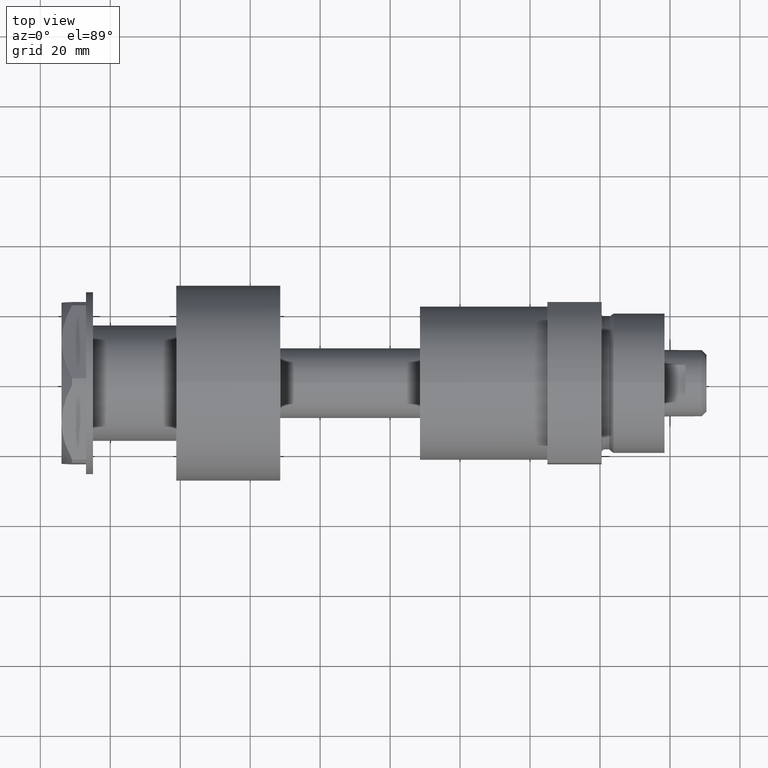
[diagram: clean part render]
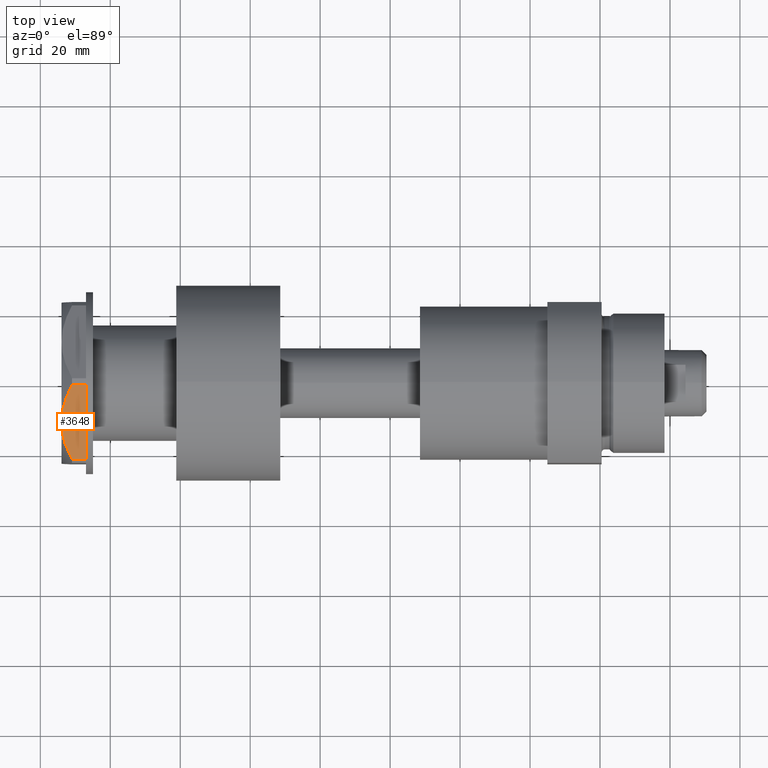
[diagram: same view with one face highlighted and labeled with its STEP entity id]
A machine part, top view. The second image highlights one B-rep face of the part: STEP entity #3648.
In plain terms, the highlighted planar face has unit normal (-0, 0.5, -0.866).
Its self-contained STEP definition (entity closure, byte-faithful):
#89 = VECTOR ( 'NONE', #4897, 1000.000000000000000 ) ;
#200 = CARTESIAN_POINT ( 'NONE',  ( -0.9699484522383838847, -25.99811238272275205, 7.000000000000000000 ) ) ;
#287 = FACE_OUTER_BOUND ( 'NONE', #3434, .T. ) ;
#375 = CARTESIAN_POINT ( 'NONE',  ( -1.799196345396636421, -25.51934588838291162, 4.431317509509394625 ) ) ;
#389 = ORIENTED_EDGE ( 'NONE', *, *, #4813, .F. ) ;
#433 = EDGE_CURVE ( 'NONE', #3117, #601, #1774, .T. ) ;
#442 = LINE ( 'NONE', #1534, #4921 ) ;
#481 = CARTESIAN_POINT ( 'NONE',  ( -0.9699484522383793328, -25.99811238272275560, 3.983800287807630180 ) ) ;
#489 = CARTESIAN_POINT ( 'NONE',  ( -0.9699484522383804430, -25.99811238272275560, 0.000000000000000000 ) ) ;
#558 = CARTESIAN_POINT ( 'NONE',  ( -15.16323225988328893, -17.80361615569431777, 6.637313967156948991 ) ) ;
#584 = CARTESIAN_POINT ( 'NONE',  ( -22.99999999999990408, -13.27905619136147841, 0.000000000000000000 ) ) ;
#589 = ORIENTED_EDGE ( 'NONE', *, *, #4911, .F. ) ;
#600 = LINE ( 'NONE', #200, #89 ) ;
#601 = VERTEX_POINT ( 'NONE', #3497 ) ;
#674 = CARTESIAN_POINT ( 'NONE',  ( -4.357207709415879648, -24.04247733877629400, 5.570552255229724636 ) ) ;
#790 = EDGE_CURVE ( 'NONE', #601, #1816, #2161, .T. ) ;
#856 = CARTESIAN_POINT ( 'NONE',  ( -18.67981377008999644, -15.77331687414923778, 5.629374868826106493 ) ) ;
#1175 = CARTESIAN_POINT ( 'NONE',  ( -22.03005154776132102, -13.83905619136147536, 7.000000000000000000 ) ) ;
#1224 = VECTOR ( 'NONE', #2135, 1000.000000000000000 ) ;
#1240 = CARTESIAN_POINT ( 'NONE',  ( -22.03005154776146313, -13.83905619136139364, 3.983800287807550244 ) ) ;
#1251 = DIRECTION ( 'NONE',  ( 0.8660254037844415942, -0.4999999999999950595, 0.000000000000000000 ) ) ;
#1416 = CARTESIAN_POINT ( 'NONE',  ( -11.49999999999990585, -19.91858428704219364, 7.000000000000000000 ) ) ;
#1452 = EDGE_CURVE ( 'NONE', #2441, #3117, #1964, .T. ) ;
#1470 = CARTESIAN_POINT ( 'NONE',  ( -5.229981517797917867, -23.53858114556528491, 5.892128867758447797 ) ) ;
#1534 = CARTESIAN_POINT ( 'NONE',  ( -22.99999999999990408, -13.27905619136147841, 0.000000000000000000 ) ) ;
#1561 = B_SPLINE_CURVE_WITH_KNOTS ( 'NONE', 3,
 ( #4963, #3856, #1921, #3884, #1470, #674, #2221, #4580, #375, #1941 ),
 .UNSPECIFIED., .F., .F.,
 ( 4, 2, 2, 2, 4 ),
 ( 0.01376519981810312397, 0.01998941321701588891, 0.02154546656674408145, 0.02310151991647227399, 0.02621362661592865212 ),
 .UNSPECIFIED. ) ;
#1644 = CARTESIAN_POINT ( 'NONE',  ( -16.05322244309625290, -17.28978008384019915, 6.426899937603785418 ) ) ;
#1712 = VERTEX_POINT ( 'NONE', #1416 ) ;
#1774 = LINE ( 'NONE', #4505, #4311 ) ;
#1816 = VERTEX_POINT ( 'NONE', #3009 ) ;
#1921 = CARTESIAN_POINT ( 'NONE',  ( -7.884645426989515649, -22.00591022298554833, 6.707651728477005193 ) ) ;
#1941 = CARTESIAN_POINT ( 'NONE',  ( -0.9699484522383793328, -25.99811238272275560, 3.983800287807630180 ) ) ;
#1964 = LINE ( 'NONE', #1175, #3577 ) ;
#2135 = DIRECTION ( 'NONE',  ( 0.8660254037844415942, -0.4999999999999950595, 0.000000000000000000 ) ) ;
#2161 = LINE ( 'NONE', #584, #1224 ) ;
#2163 = CARTESIAN_POINT ( 'NONE',  ( -13.80210138309694656, -18.58946543380921668, 6.852712638955803293 ) ) ;
#2209 = CARTESIAN_POINT ( 'NONE',  ( -22.99999999999990408, -13.27905619136147841, 7.000000000000000000 ) ) ;
#2221 = CARTESIAN_POINT ( 'NONE',  ( -3.925137811029886681, -24.29193301091817858, 5.397272853991413655 ) ) ;
#2406 = ORIENTED_EDGE ( 'NONE', *, *, #3722, .T. ) ;
#2441 = VERTEX_POINT ( 'NONE', #3945 ) ;
#2470 = CARTESIAN_POINT ( 'NONE',  ( -13.34348161667001875, -18.85424967941148466, 6.907842277728440727 ) ) ;
#2551 = AXIS2_PLACEMENT_3D ( 'NONE', #2209, #3031, #3824 ) ;
#2580 = B_SPLINE_CURVE_WITH_KNOTS ( 'NONE', 3,
 ( #1240, #4347, #856, #1644, #558, #2163, #2470, #2955, #4524, #3294 ),
 .UNSPECIFIED., .F., .F.,
 ( 4, 2, 2, 2, 4 ),
 ( 0.001228959670438515206, 0.007497079744270819697, 0.01063113978118697227, 0.01219816979964504812, 0.01376519981810312397 ),
 .UNSPECIFIED. ) ;
#2859 = CARTESIAN_POINT ( 'NONE',  ( -22.03005154776132102, -13.83905619136147536, 0.000000000000000000 ) ) ;
#2923 = VERTEX_POINT ( 'NONE', #481 ) ;
#2955 = CARTESIAN_POINT ( 'NONE',  ( -12.41906678023023325, -19.38796083407287085, 6.981686407609505096 ) ) ;
#2980 = PLANE ( 'NONE',  #2551 ) ;
#3009 = CARTESIAN_POINT ( 'NONE',  ( -0.9999999999997406519, -25.98076211353317433, 0.000000000000000000 ) ) ;
#3031 = DIRECTION ( 'NONE',  ( 0.4999999999999950595, 0.8660254037844415942, -0.000000000000000000 ) ) ;
#3117 = VERTEX_POINT ( 'NONE', #2859 ) ;
#3274 = ORIENTED_EDGE ( 'NONE', *, *, #433, .T. ) ;
#3294 = CARTESIAN_POINT ( 'NONE',  ( -11.49999999999990585, -19.91858428704219364, 7.000000000000000000 ) ) ;
#3374 = DIRECTION ( 'NONE',  ( 0.8660254037844415942, -0.4999999999999950595, 0.000000000000000000 ) ) ;
#3434 = EDGE_LOOP ( 'NONE', ( #589, #4467, #3274, #3831, #2406, #4506, #389 ) ) ;
#3497 = CARTESIAN_POINT ( 'NONE',  ( -21.99999999999998224, -13.85640646055105485, 0.000000000000000000 ) ) ;
#3572 = DIRECTION ( 'NONE',  ( -0.000000000000000000, 0.000000000000000000, -1.000000000000000000 ) ) ;
#3577 = VECTOR ( 'NONE', #3572, 1000.000000000000000 ) ;
#3648 = ADVANCED_FACE ( 'NONE', ( #287 ), #2980, .F. ) ;
#3722 = EDGE_CURVE ( 'NONE', #1816, #4379, #442, .T. ) ;
#3824 = DIRECTION ( 'NONE',  ( -0.8660254037844415942, 0.4999999999999950595, 0.000000000000000000 ) ) ;
#3831 = ORIENTED_EDGE ( 'NONE', *, *, #790, .T. ) ;
#3856 = CARTESIAN_POINT ( 'NONE',  ( -9.678244919010008829, -20.97037507344916207, 7.000000000000096811 ) ) ;
#3884 = CARTESIAN_POINT ( 'NONE',  ( -5.671686373602661035, -23.28356272816404982, 6.040681765829337913 ) ) ;
#3945 = CARTESIAN_POINT ( 'NONE',  ( -22.03005154776146313, -13.83905619136139364, 3.983800287807550244 ) ) ;
#4001 = EDGE_CURVE ( 'NONE', #4379, #2923, #600, .T. ) ;
#4311 = VECTOR ( 'NONE', #3374, 1000.000000000000000 ) ;
#4347 = CARTESIAN_POINT ( 'NONE',  ( -20.37350567916426058, -14.79546339452094017, 4.877782426143459027 ) ) ;
#4379 = VERTEX_POINT ( 'NONE', #489 ) ;
#4467 = ORIENTED_EDGE ( 'NONE', *, *, #1452, .T. ) ;
#4505 = CARTESIAN_POINT ( 'NONE',  ( -22.99999999999990408, -13.27905619136147841, 0.000000000000000000 ) ) ;
#4506 = ORIENTED_EDGE ( 'NONE', *, *, #4001, .T. ) ;
#4524 = CARTESIAN_POINT ( 'NONE',  ( -11.95865151389046943, -19.65378171203314395, 7.000000000000095923 ) ) ;
#4580 = CARTESIAN_POINT ( 'NONE',  ( -2.640413878806560088, -25.03366871902165869, 4.844201024438385517 ) ) ;
#4813 = EDGE_CURVE ( 'NONE', #1712, #2923, #1561, .T. ) ;
#4897 = DIRECTION ( 'NONE',  ( 0.000000000000000000, 0.000000000000000000, 1.000000000000000000 ) ) ;
#4911 = EDGE_CURVE ( 'NONE', #2441, #1712, #2580, .T. ) ;
#4921 = VECTOR ( 'NONE', #1251, 1000.000000000000000 ) ;
#4963 = CARTESIAN_POINT ( 'NONE',  ( -11.49999999999990585, -19.91858428704219364, 7.000000000000000000 ) ) ;